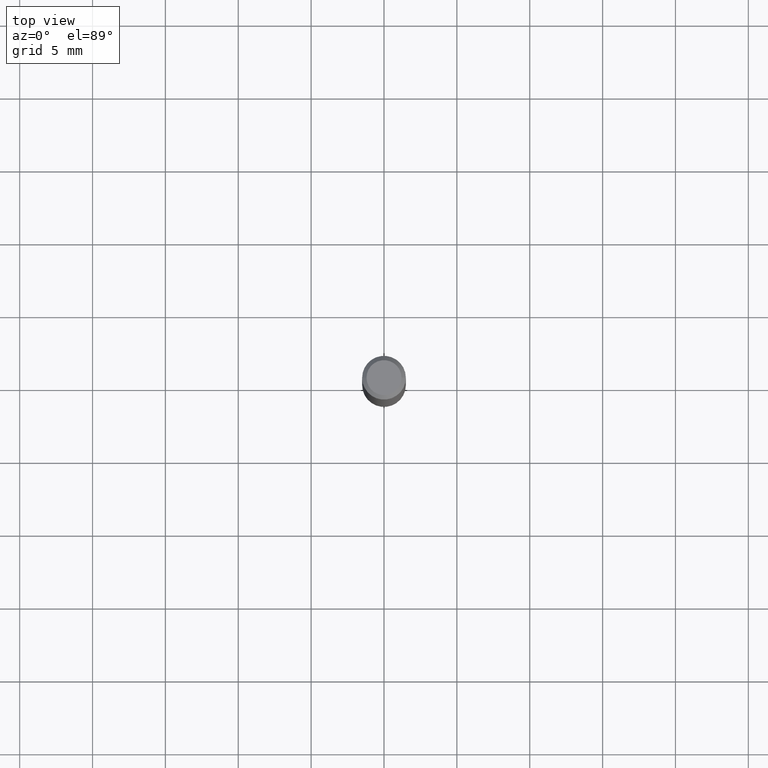
[diagram: clean part render]
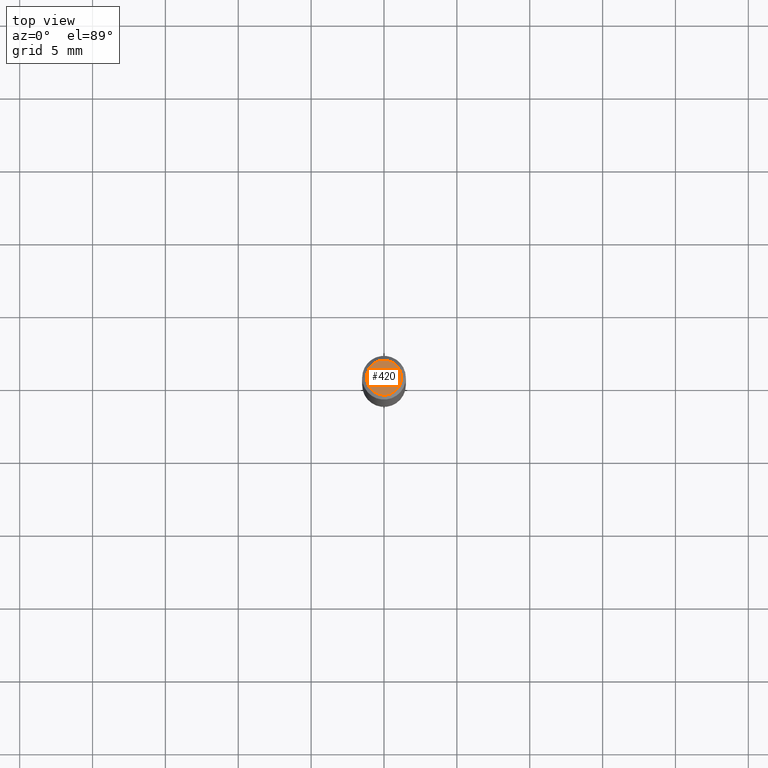
[diagram: same view with one face highlighted and labeled with its STEP entity id]
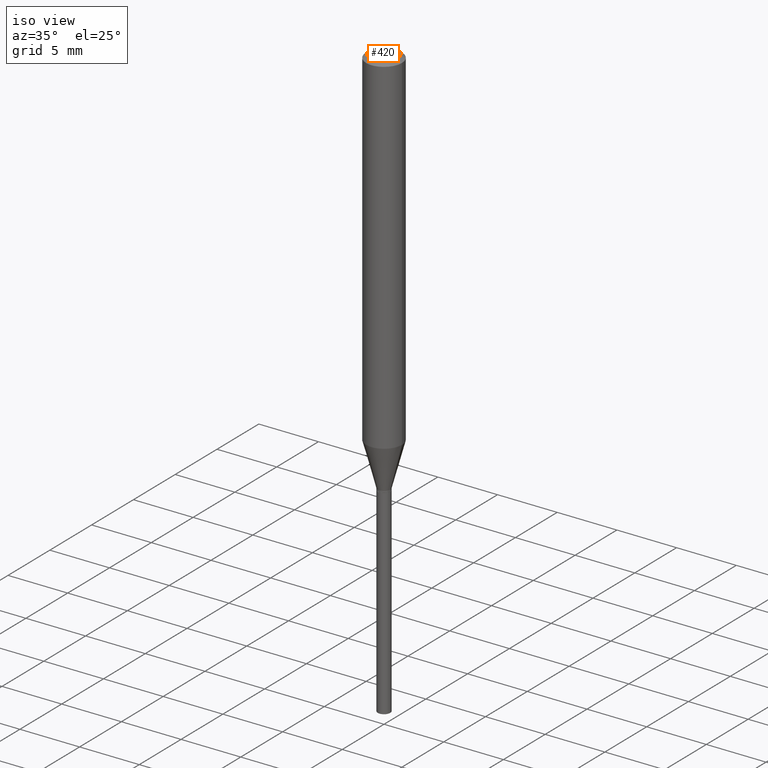
[diagram: same view with one face highlighted and labeled with its STEP entity id]
A machine part, top view. The second image highlights one B-rep face of the part: STEP entity #420.
A second angle (iso view) of the same face is appended — the face is thin or edge-on in the first view.
In plain terms, the highlighted planar face has unit normal (0, -0, -1).
Its self-contained STEP definition (entity closure, byte-faithful):
#16 = DIRECTION ( 'NONE',  ( -2.445468806185136597E-29, 3.491481338843145583E-15, 1.000000000000000000 ) ) ;
#19 = AXIS2_PLACEMENT_3D ( 'NONE', #100, #370, #358 ) ;
#23 = DIRECTION ( 'NONE',  ( -2.445468806185136597E-29, 3.491481338843145583E-15, 1.000000000000000000 ) ) ;
#39 = EDGE_CURVE ( 'NONE', #279, #470, #129, .T. ) ;
#98 = AXIS2_PLACEMENT_3D ( 'NONE', #390, #23, #267 ) ;
#100 = CARTESIAN_POINT ( 'NONE',  ( 4.132873053354867254E-48, -5.900647395337818946E-34, -1.690012582823346072E-19 ) ) ;
#129 = CIRCLE ( 'NONE', #400, 0.04724000000000000421 ) ;
#138 = DIRECTION ( 'NONE',  ( 1.000000000000000000, -6.982962677686266711E-15, 4.876185090822587894E-29 ) ) ;
#143 = ORIENTED_EDGE ( 'NONE', *, *, #392, .T. ) ;
#179 = ORIENTED_EDGE ( 'NONE', *, *, #39, .T. ) ;
#223 = PLANE ( 'NONE',  #19 ) ;
#251 = FACE_OUTER_BOUND ( 'NONE', #263, .T. ) ;
#263 = EDGE_LOOP ( 'NONE', ( #179, #143 ) ) ;
#267 = DIRECTION ( 'NONE',  ( 1.000000000000000000, -6.982962677686266711E-15, 4.876185090822587894E-29 ) ) ;
#279 = VERTEX_POINT ( 'NONE', #382 ) ;
#355 = CARTESIAN_POINT ( 'NONE',  ( 8.265746106709734507E-48, -1.180129479067563789E-33, -3.380025165646692144E-19 ) ) ;
#358 = DIRECTION ( 'NONE',  ( -1.000000000000000000, 6.982962677686265922E-15, -4.876176775795935793E-29 ) ) ;
#370 = DIRECTION ( 'NONE',  ( 2.438088387897960049E-29, -3.491481338843145188E-15, -1.000000000000000000 ) ) ;
#382 = CARTESIAN_POINT ( 'NONE',  ( -0.04724000000000000421, 3.504923541997677355E-16, -3.380025165670481712E-19 ) ) ;
#384 = CIRCLE ( 'NONE', #98, 0.04724000000000000421 ) ;
#390 = CARTESIAN_POINT ( 'NONE',  ( 8.265746106709734507E-48, -1.180129479067563789E-33, -3.380025165646692144E-19 ) ) ;
#392 = EDGE_CURVE ( 'NONE', #470, #279, #384, .T. ) ;
#400 = AXIS2_PLACEMENT_3D ( 'NONE', #355, #16, #138 ) ;
#404 = CARTESIAN_POINT ( 'NONE',  ( 0.04724000000000000421, -3.852183633974369345E-16, -3.380025165621689721E-19 ) ) ;
#420 = ADVANCED_FACE ( 'NONE', ( #251 ), #223, .F. ) ;
#470 = VERTEX_POINT ( 'NONE', #404 ) ;